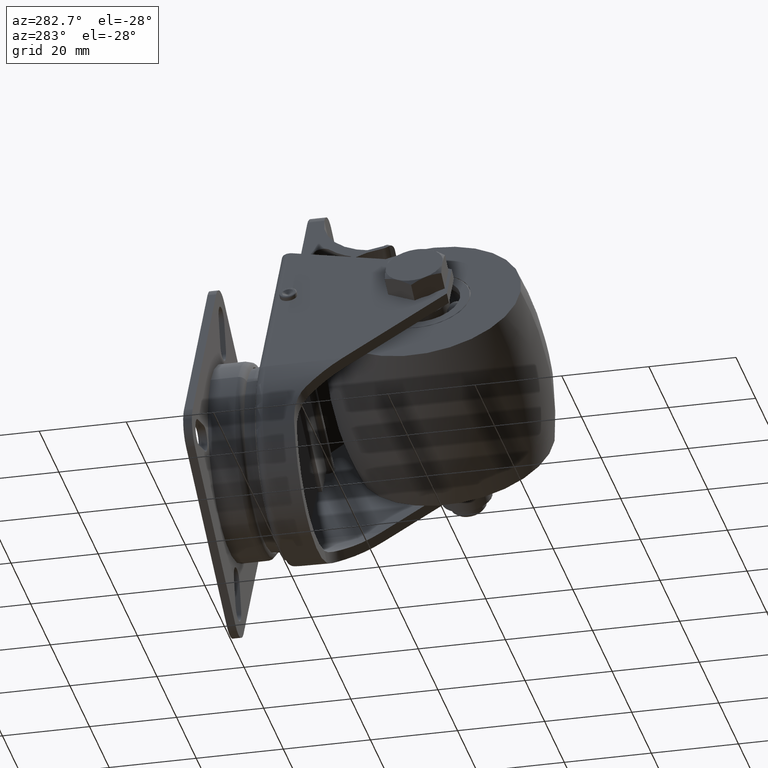
[diagram: clean part render]
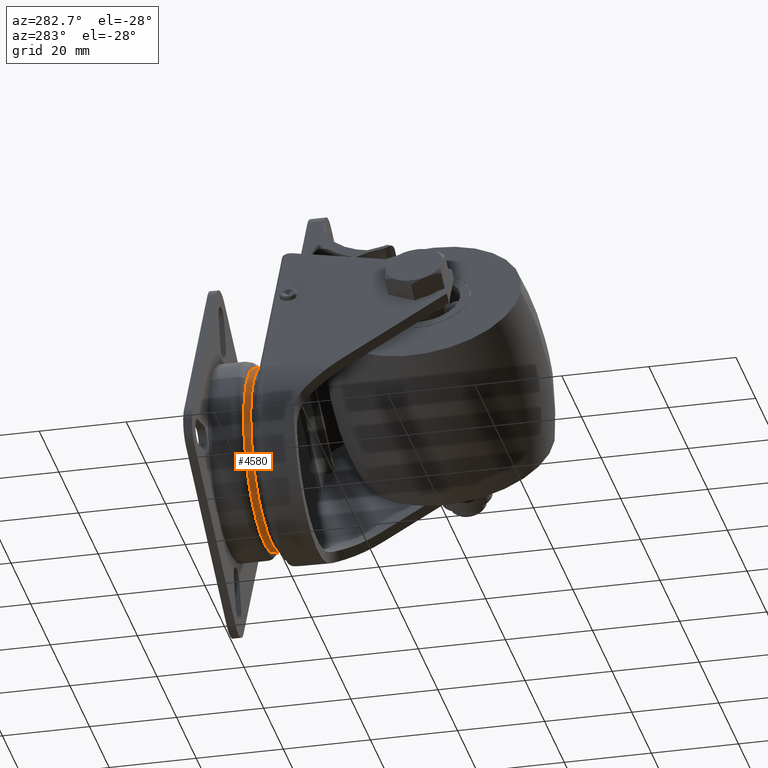
[diagram: same view with one face highlighted and labeled with its STEP entity id]
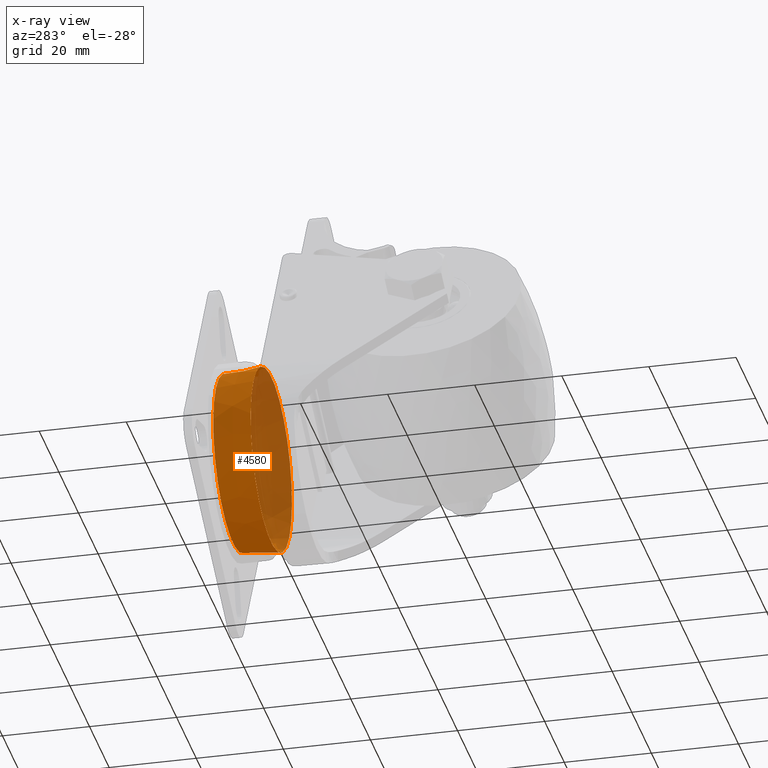
[diagram: x-ray of the same camera — body ghosted, the highlighted face saturated]
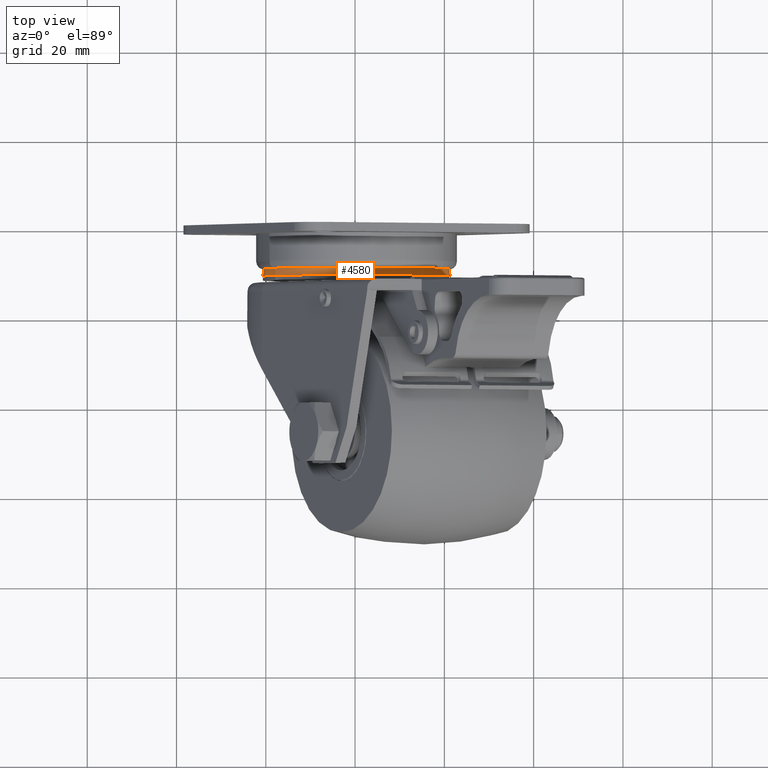
[diagram: same view with one face highlighted and labeled with its STEP entity id]
A machine part, auxiliary view. The second image highlights one B-rep face of the part: STEP entity #4580.
The next image is the same camera in x-ray: the body ghosted, the highlighted face saturated — about 43% of this face is hidden behind the body in this view.
A second angle (top view) of the same face is appended — the face is thin or edge-on in the first view.
In plain terms, the highlighted conical surface has half-angle 4.97 deg.
Its self-contained STEP definition (entity closure, byte-faithful):
#91=CONICAL_SURFACE('',#4929,20.5,4.96974072811031);
#187=FACE_BOUND('',#796,.T.);
#488=FACE_OUTER_BOUND('',#795,.T.);
#795=EDGE_LOOP('',(#3370));
#796=EDGE_LOOP('',(#3371));
#1161=CIRCLE('',#4928,20.2382705348613);
#1162=CIRCLE('',#4930,21.);
#2096=VERTEX_POINT('',#7118);
#2097=VERTEX_POINT('',#7121);
#2593=EDGE_CURVE('',#2096,#2096,#1161,.T.);
#2594=EDGE_CURVE('',#2097,#2097,#1162,.T.);
#3370=ORIENTED_EDGE('',*,*,#2594,.T.);
#3371=ORIENTED_EDGE('',*,*,#2593,.F.);
#4580=ADVANCED_FACE('',(#488,#187),#91,.T.);
#4928=AXIS2_PLACEMENT_3D('',#7119,#5669,#5670);
#4929=AXIS2_PLACEMENT_3D('',#7120,#5671,#5672);
#4930=AXIS2_PLACEMENT_3D('',#7122,#5673,#5674);
#5669=DIRECTION('center_axis',(0.,0.,-1.));
#5670=DIRECTION('ref_axis',(1.,-6.12323399573676E-17,0.));
#5671=DIRECTION('center_axis',(0.,0.,1.));
#5672=DIRECTION('ref_axis',(-1.,0.,0.));
#5673=DIRECTION('center_axis',(0.,0.,-1.));
#5674=DIRECTION('ref_axis',(1.,0.,0.));
#7118=CARTESIAN_POINT('',(-20.2382705348613,2.47847332307961E-15,-10.2598888490945));
#7119=CARTESIAN_POINT('Origin',(0.,-1.23923666153981E-15,-10.2598888490945));
#7120=CARTESIAN_POINT('Origin',(0.,0.,-7.25));
#7121=CARTESIAN_POINT('',(-21.,0.,-1.5));
#7122=CARTESIAN_POINT('Origin',(0.,0.,-1.5));